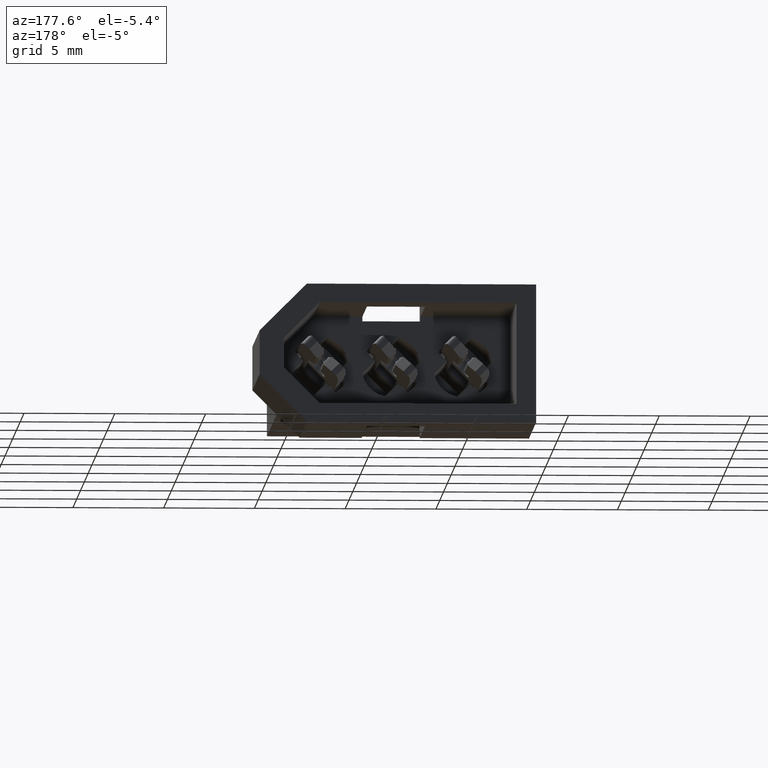
[diagram: clean part render]
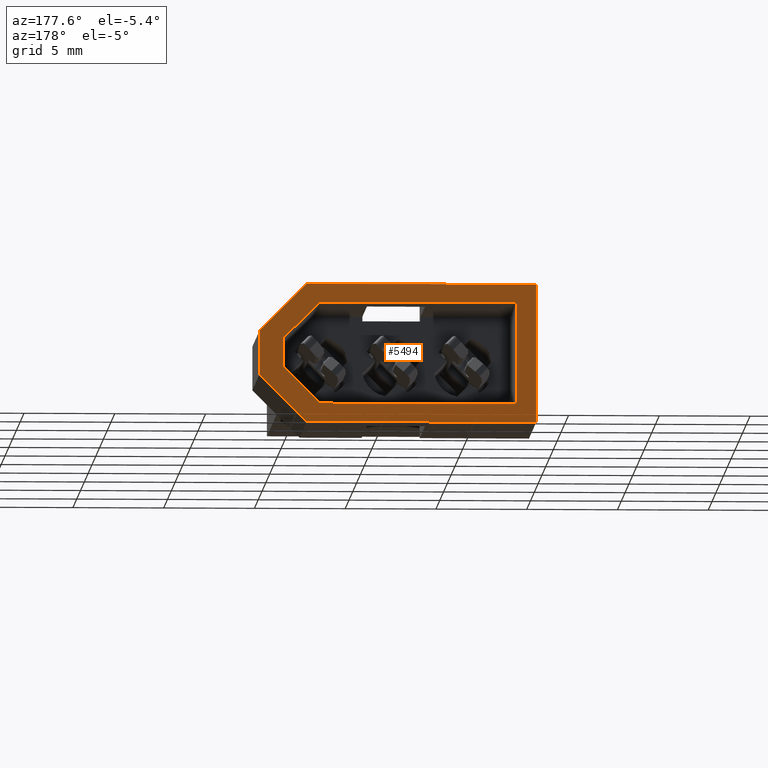
[diagram: same view with one face highlighted and labeled with its STEP entity id]
A machine part, auxiliary view. The second image highlights one B-rep face of the part: STEP entity #5494.
In plain terms, the highlighted planar face has unit normal (0, 1, 0).
Its self-contained STEP definition (entity closure, byte-faithful):
#16 = LINE ( 'NONE', #3336, #2550 ) ;
#93 = CARTESIAN_POINT ( 'NONE',  ( 8.978900000000017200, 9.525000000000000400, 3.809999999999999600 ) ) ;
#181 = LINE ( 'NONE', #1153, #3571 ) ;
#199 = CARTESIAN_POINT ( 'NONE',  ( -3.657599999999998600, 9.525000000000000400, 3.809999999999999600 ) ) ;
#302 = VECTOR ( 'NONE', #470, 1000.000000000000000 ) ;
#320 = LINE ( 'NONE', #4777, #4581 ) ;
#369 = CARTESIAN_POINT ( 'NONE',  ( -2.575109175245276800, 9.525000000000000400, 2.794000000000000500 ) ) ;
#392 = VERTEX_POINT ( 'NONE', #2327 ) ;
#470 = DIRECTION ( 'NONE',  ( -1.000000000000000000, -0.0000000000000000000, -0.0000000000000000000 ) ) ;
#486 = LINE ( 'NONE', #5148, #4298 ) ;
#586 = ORIENTED_EDGE ( 'NONE', *, *, #3081, .T. ) ;
#614 = LINE ( 'NONE', #3289, #302 ) ;
#774 = VERTEX_POINT ( 'NONE', #3675 ) ;
#968 = EDGE_CURVE ( 'NONE', #5721, #2895, #5010, .T. ) ;
#1033 = CARTESIAN_POINT ( 'NONE',  ( 8.978900000000017200, 9.525000000000000400, 3.809999999999999600 ) ) ;
#1060 = VERTEX_POINT ( 'NONE', #5116 ) ;
#1067 = VERTEX_POINT ( 'NONE', #5631 ) ;
#1153 = CARTESIAN_POINT ( 'NONE',  ( 8.270690824754726800, 9.525000000000000400, -2.794000000000001400 ) ) ;
#1277 = DIRECTION ( 'NONE',  ( -0.0000000000000000000, -0.0000000000000000000, -1.000000000000000000 ) ) ;
#1284 = CARTESIAN_POINT ( 'NONE',  ( -3.657599999999998600, 9.525000000000000400, 3.809999999999999600 ) ) ;
#1353 = DIRECTION ( 'NONE',  ( -0.0000000000000000000, -0.0000000000000000000, -1.000000000000000000 ) ) ;
#1378 = ORIENTED_EDGE ( 'NONE', *, *, #5536, .T. ) ;
#1706 = CARTESIAN_POINT ( 'NONE',  ( -2.575109175245276800, 9.525000000000000400, 2.794000000000000500 ) ) ;
#1712 = VERTEX_POINT ( 'NONE', #5230 ) ;
#1826 = VECTOR ( 'NONE', #1353, 1000.000000000000000 ) ;
#1936 = EDGE_CURVE ( 'NONE', #2895, #774, #16, .T. ) ;
#1975 = ORIENTED_EDGE ( 'NONE', *, *, #3079, .T. ) ;
#2010 = CARTESIAN_POINT ( 'NONE',  ( -3.657599999999998600, 9.525000000000000400, -3.809999999999999600 ) ) ;
#2089 = ORIENTED_EDGE ( 'NONE', *, *, #4366, .T. ) ;
#2099 = VECTOR ( 'NONE', #5664, 1000.000000000000000 ) ;
#2115 = VERTEX_POINT ( 'NONE', #4939 ) ;
#2228 = LINE ( 'NONE', #2866, #4364 ) ;
#2325 = LINE ( 'NONE', #1033, #4601 ) ;
#2327 = CARTESIAN_POINT ( 'NONE',  ( -3.657599999999998600, 9.525000000000000400, -3.809999999999999600 ) ) ;
#2433 = EDGE_LOOP ( 'NONE', ( #1975, #5021, #4827, #586, #2089, #1378 ) ) ;
#2550 = VECTOR ( 'NONE', #2868, 1000.000000000000100 ) ;
#2597 = CARTESIAN_POINT ( 'NONE',  ( 0.0000000000000000000, 9.525000000000000400, 0.0000000000000000000 ) ) ;
#2623 = DIRECTION ( 'NONE',  ( 0.7071067811865460200, 0.0000000000000000000, -0.7071067811865490200 ) ) ;
#2643 = VERTEX_POINT ( 'NONE', #93 ) ;
#2696 = EDGE_CURVE ( 'NONE', #3443, #1060, #181, .T. ) ;
#2701 = LINE ( 'NONE', #199, #3250 ) ;
#2809 = DIRECTION ( 'NONE',  ( 1.000000000000000000, 0.0000000000000000000, 0.0000000000000000000 ) ) ;
#2866 = CARTESIAN_POINT ( 'NONE',  ( 8.978899999999992300, 9.525000000000000400, -3.809999999999999600 ) ) ;
#2868 = DIRECTION ( 'NONE',  ( 0.7071067811865461300, -0.0000000000000000000, -0.7071067811865489100 ) ) ;
#2895 = VERTEX_POINT ( 'NONE', #4629 ) ;
#3079 = EDGE_CURVE ( 'NONE', #392, #5404, #6325, .T. ) ;
#3081 = EDGE_CURVE ( 'NONE', #1712, #1067, #5850, .T. ) ;
#3082 = CARTESIAN_POINT ( 'NONE',  ( 8.270690824754726800, 9.525000000000000400, 2.793999999999998700 ) ) ;
#3132 = LINE ( 'NONE', #369, #3372 ) ;
#3180 = EDGE_CURVE ( 'NONE', #2643, #1712, #2325, .T. ) ;
#3223 = EDGE_CURVE ( 'NONE', #1060, #5804, #486, .T. ) ;
#3250 = VECTOR ( 'NONE', #2809, 1000.000000000000000 ) ;
#3289 = CARTESIAN_POINT ( 'NONE',  ( -3.657599999999998600, 9.525000000000000400, -3.809999999999999600 ) ) ;
#3313 = FACE_OUTER_BOUND ( 'NONE', #2433, .T. ) ;
#3336 = CARTESIAN_POINT ( 'NONE',  ( 10.25189082475472300, 9.525000000000000400, 0.8127999999999955300 ) ) ;
#3372 = VECTOR ( 'NONE', #6418, 1000.000000000000000 ) ;
#3443 = VERTEX_POINT ( 'NONE', #5967 ) ;
#3571 = VECTOR ( 'NONE', #5646, 1000.000000000000000 ) ;
#3675 = CARTESIAN_POINT ( 'NONE',  ( 10.25189082475472300, 9.525000000000000400, 0.8127999999999955300 ) ) ;
#3766 = AXIS2_PLACEMENT_3D ( 'NONE', #2597, #5725, #5136 ) ;
#3848 = ORIENTED_EDGE ( 'NONE', *, *, #968, .F. ) ;
#4219 = EDGE_CURVE ( 'NONE', #5404, #2643, #2701, .T. ) ;
#4260 = ORIENTED_EDGE ( 'NONE', *, *, #6376, .F. ) ;
#4298 = VECTOR ( 'NONE', #5129, 1000.000000000000000 ) ;
#4308 = EDGE_CURVE ( 'NONE', #774, #3443, #320, .T. ) ;
#4364 = VECTOR ( 'NONE', #4913, 1000.000000000000100 ) ;
#4366 = EDGE_CURVE ( 'NONE', #1067, #2115, #2228, .T. ) ;
#4387 = DIRECTION ( 'NONE',  ( 0.0000000000000000000, 0.0000000000000000000, 1.000000000000000000 ) ) ;
#4518 = EDGE_LOOP ( 'NONE', ( #4260, #6112, #4839, #5035, #5261, #3848 ) ) ;
#4581 = VECTOR ( 'NONE', #1277, 1000.000000000000000 ) ;
#4601 = VECTOR ( 'NONE', #2623, 1000.000000000000100 ) ;
#4629 = CARTESIAN_POINT ( 'NONE',  ( 8.270690824754726800, 9.525000000000000400, 2.793999999999998700 ) ) ;
#4777 = CARTESIAN_POINT ( 'NONE',  ( 10.25189082475472300, 9.525000000000000400, -0.8128000000000053000 ) ) ;
#4827 = ORIENTED_EDGE ( 'NONE', *, *, #3180, .T. ) ;
#4839 = ORIENTED_EDGE ( 'NONE', *, *, #2696, .F. ) ;
#4913 = DIRECTION ( 'NONE',  ( -0.7071067811865492400, -0.0000000000000000000, -0.7071067811865458000 ) ) ;
#4939 = CARTESIAN_POINT ( 'NONE',  ( 8.978899999999992300, 9.525000000000000400, -3.809999999999999600 ) ) ;
#4989 = VECTOR ( 'NONE', #4387, 1000.000000000000000 ) ;
#5010 = LINE ( 'NONE', #3082, #2099 ) ;
#5021 = ORIENTED_EDGE ( 'NONE', *, *, #4219, .T. ) ;
#5035 = ORIENTED_EDGE ( 'NONE', *, *, #4308, .F. ) ;
#5056 = CARTESIAN_POINT ( 'NONE',  ( 11.58240000000000000, 9.525000000000000400, -1.206500000000005900 ) ) ;
#5116 = CARTESIAN_POINT ( 'NONE',  ( 8.270690824754726800, 9.525000000000000400, -2.794000000000001400 ) ) ;
#5117 = FACE_BOUND ( 'NONE', #4518, .T. ) ;
#5129 = DIRECTION ( 'NONE',  ( -1.000000000000000000, -0.0000000000000000000, 1.599442619241371200E-016 ) ) ;
#5136 = DIRECTION ( 'NONE',  ( 0.0000000000000000000, -0.0000000000000000000, 1.000000000000000000 ) ) ;
#5148 = CARTESIAN_POINT ( 'NONE',  ( -2.575109175245277700, 9.525000000000000400, -2.793999999999999600 ) ) ;
#5230 = CARTESIAN_POINT ( 'NONE',  ( 11.58240000000000000, 9.525000000000000400, 1.206500000000005900 ) ) ;
#5261 = ORIENTED_EDGE ( 'NONE', *, *, #1936, .F. ) ;
#5404 = VERTEX_POINT ( 'NONE', #1284 ) ;
#5494 = ADVANCED_FACE ( 'NONE', ( #5117, #3313 ), #6190, .T. ) ;
#5536 = EDGE_CURVE ( 'NONE', #2115, #392, #614, .T. ) ;
#5631 = CARTESIAN_POINT ( 'NONE',  ( 11.58240000000000000, 9.525000000000000400, -1.206500000000005900 ) ) ;
#5646 = DIRECTION ( 'NONE',  ( -0.7071067811865474600, -0.0000000000000000000, -0.7071067811865475700 ) ) ;
#5664 = DIRECTION ( 'NONE',  ( 1.000000000000000000, -0.0000000000000000000, -1.599442619241371200E-016 ) ) ;
#5721 = VERTEX_POINT ( 'NONE', #1706 ) ;
#5725 = DIRECTION ( 'NONE',  ( 0.0000000000000000000, 1.000000000000000000, 0.0000000000000000000 ) ) ;
#5763 = CARTESIAN_POINT ( 'NONE',  ( -2.575109175245277700, 9.525000000000000400, -2.793999999999999600 ) ) ;
#5804 = VERTEX_POINT ( 'NONE', #5763 ) ;
#5850 = LINE ( 'NONE', #5056, #1826 ) ;
#5967 = CARTESIAN_POINT ( 'NONE',  ( 10.25189082475472300, 9.525000000000000400, -0.8128000000000053000 ) ) ;
#6112 = ORIENTED_EDGE ( 'NONE', *, *, #3223, .F. ) ;
#6190 = PLANE ( 'NONE',  #3766 ) ;
#6325 = LINE ( 'NONE', #2010, #4989 ) ;
#6376 = EDGE_CURVE ( 'NONE', #5804, #5721, #3132, .T. ) ;
#6418 = DIRECTION ( 'NONE',  ( 1.552186360036513200E-016, -0.0000000000000000000, 1.000000000000000000 ) ) ;